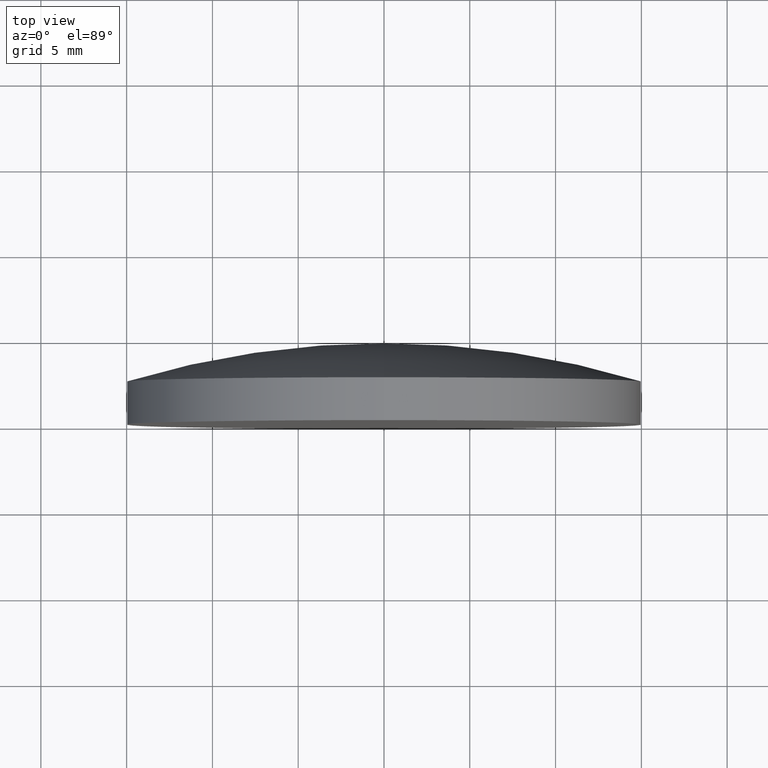
[diagram: clean part render]
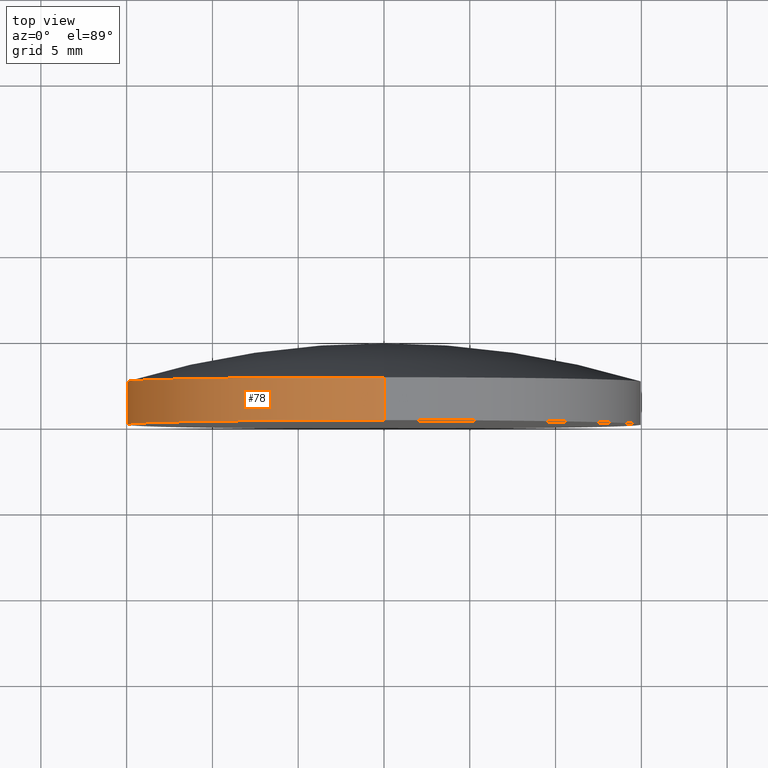
[diagram: same view with one face highlighted and labeled with its STEP entity id]
A machine part, top view. The second image highlights one B-rep face of the part: STEP entity #78.
In plain terms, the highlighted cylindrical surface (partial cylindrical patch) has radius 15 mm, axis along (-0, 1, -0).
Its self-contained STEP definition (entity closure, byte-faithful):
#12 = DIRECTION ( 'NONE',  ( 0.000000000000000000, 0.000000000000000000, 1.000000000000000000 ) ) ;
#18 = AXIS2_PLACEMENT_3D ( 'NONE', #25, #87, #12 ) ;
#21 = CYLINDRICAL_SURFACE ( 'NONE', #48, 15.00000000000000000 ) ;
#25 = CARTESIAN_POINT ( 'NONE',  ( 0.000000000000000000, -1.734723475976807094E-15, 0.000000000000000000 ) ) ;
#32 = ORIENTED_EDGE ( 'NONE', *, *, #191, .T. ) ;
#36 = AXIS2_PLACEMENT_3D ( 'NONE', #45, #89, #43 ) ;
#39 = CARTESIAN_POINT ( 'NONE',  ( 1.836970198721029589E-15, -1.734723475976807094E-15, -15.00000000000000000 ) ) ;
#43 = DIRECTION ( 'NONE',  ( 0.000000000000000000, 0.000000000000000000, 1.000000000000000000 ) ) ;
#45 = CARTESIAN_POINT ( 'NONE',  ( 0.000000000000000000, 2.499999999999998224, 0.000000000000000000 ) ) ;
#47 = VERTEX_POINT ( 'NONE', #135 ) ;
#48 = AXIS2_PLACEMENT_3D ( 'NONE', #56, #106, #85 ) ;
#53 = FACE_OUTER_BOUND ( 'NONE', #154, .T. ) ;
#56 = CARTESIAN_POINT ( 'NONE',  ( 0.000000000000000000, 4.730000000000000426, 0.000000000000000000 ) ) ;
#59 = ORIENTED_EDGE ( 'NONE', *, *, #159, .F. ) ;
#60 = VERTEX_POINT ( 'NONE', #105 ) ;
#73 = CARTESIAN_POINT ( 'NONE',  ( 0.000000000000000000, 4.730000000000000426, 15.00000000000000000 ) ) ;
#74 = VERTEX_POINT ( 'NONE', #39 ) ;
#78 = ADVANCED_FACE ( 'NONE', ( #53 ), #21, .T. ) ;
#79 = VECTOR ( 'NONE', #139, 1000.000000000000000 ) ;
#85 = DIRECTION ( 'NONE',  ( 0.000000000000000000, 0.000000000000000000, 1.000000000000000000 ) ) ;
#87 = DIRECTION ( 'NONE',  ( -0.000000000000000000, 1.000000000000000000, -0.000000000000000000 ) ) ;
#89 = DIRECTION ( 'NONE',  ( -0.000000000000000000, 1.000000000000000000, -0.000000000000000000 ) ) ;
#100 = EDGE_CURVE ( 'NONE', #74, #112, #119, .T. ) ;
#105 = CARTESIAN_POINT ( 'NONE',  ( 0.000000000000000000, -1.734723475976807094E-15, 15.00000000000000000 ) ) ;
#106 = DIRECTION ( 'NONE',  ( -0.000000000000000000, 1.000000000000000000, -0.000000000000000000 ) ) ;
#107 = CIRCLE ( 'NONE', #18, 15.00000000000000000 ) ;
#112 = VERTEX_POINT ( 'NONE', #123 ) ;
#119 = LINE ( 'NONE', #178, #186 ) ;
#120 = EDGE_CURVE ( 'NONE', #60, #47, #137, .T. ) ;
#123 = CARTESIAN_POINT ( 'NONE',  ( 1.836970198721029589E-15, 2.500000000000000444, -15.00000000000000178 ) ) ;
#124 = ORIENTED_EDGE ( 'NONE', *, *, #100, .F. ) ;
#127 = CIRCLE ( 'NONE', #36, 15.00000000000000000 ) ;
#135 = CARTESIAN_POINT ( 'NONE',  ( 0.000000000000000000, 2.500000000000000444, 15.00000000000000178 ) ) ;
#137 = LINE ( 'NONE', #73, #79 ) ;
#139 = DIRECTION ( 'NONE',  ( -0.000000000000000000, 1.000000000000000000, -0.000000000000000000 ) ) ;
#149 = DIRECTION ( 'NONE',  ( -0.000000000000000000, 1.000000000000000000, -0.000000000000000000 ) ) ;
#154 = EDGE_LOOP ( 'NONE', ( #124, #32, #168, #59 ) ) ;
#159 = EDGE_CURVE ( 'NONE', #112, #47, #127, .T. ) ;
#168 = ORIENTED_EDGE ( 'NONE', *, *, #120, .T. ) ;
#178 = CARTESIAN_POINT ( 'NONE',  ( 1.836970198721029589E-15, 4.730000000000000426, -15.00000000000000000 ) ) ;
#186 = VECTOR ( 'NONE', #149, 1000.000000000000000 ) ;
#191 = EDGE_CURVE ( 'NONE', #74, #60, #107, .T. ) ;